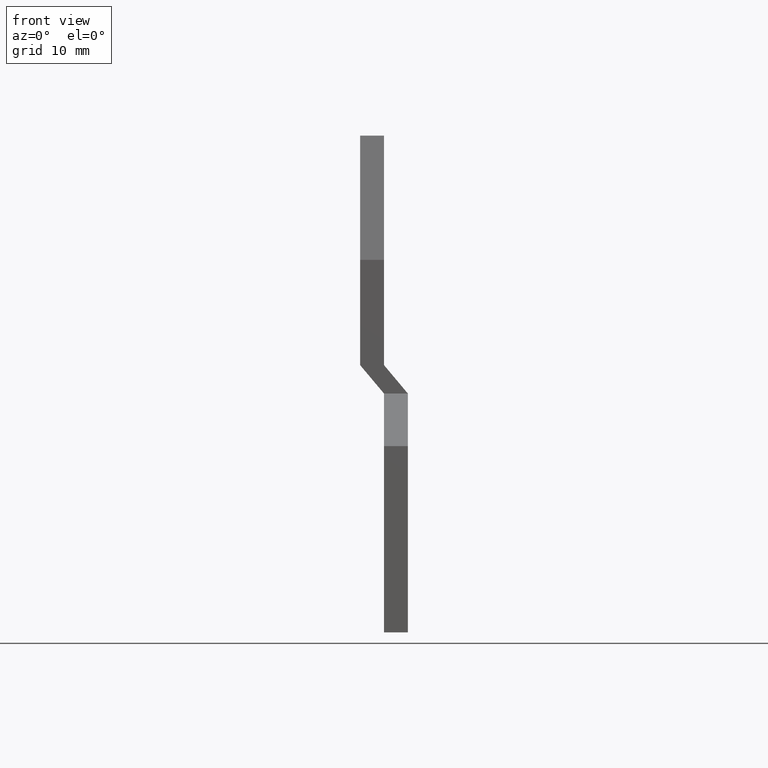
[diagram: clean part render]
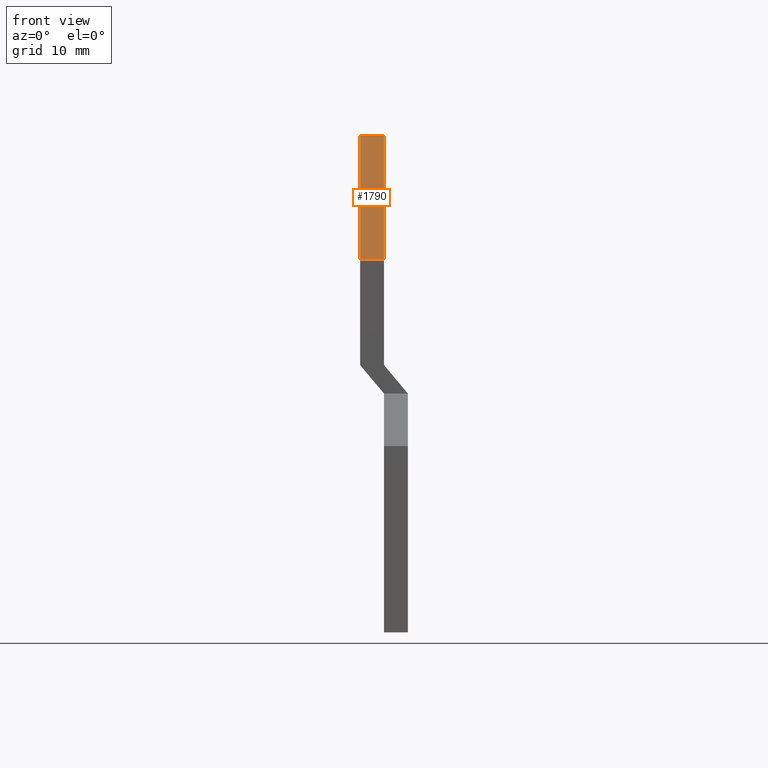
[diagram: same view with one face highlighted and labeled with its STEP entity id]
A machine part, front view. The second image highlights one B-rep face of the part: STEP entity #1790.
In plain terms, the highlighted planar face has unit normal (0, -0.9397, 0.342).
Its self-contained STEP definition (entity closure, byte-faithful):
#100=CARTESIAN_POINT('',(33.9310803014635,58.6364093308882,
4.88498130835069E-15));
#110=VERTEX_POINT('',#100);
#160=CARTESIAN_POINT('',(55.2709350296005,0.00564033088821247,
4.88498130835069E-15));
#170=DIRECTION('',(-0.342020143325662,0.939692620785911,0.));
#180=VECTOR('',#170,1.);
#190=LINE('',#160,#180);
#200=CARTESIAN_POINT('',(38.6626933469241,45.6364093308882,
4.88498130835069E-15));
#210=VERTEX_POINT('',#200);
#220=EDGE_CURVE('',#210,#110,#190,.T.);
#1490=CARTESIAN_POINT('',(34.1705653840396,57.9784294742139,-5.5000024))
;
#1500=DIRECTION('',(0.939692620785911,0.342020143325662,0.));
#1510=DIRECTION('',(0.342020143325662,-0.939692620785911,0.));
#1520=AXIS2_PLACEMENT_3D('',#1490,#1500,#1510);
#1530=PLANE('',#1520);
#1540=CARTESIAN_POINT('',(33.9310803014635,58.6364093308882,
3.99680288865056E-15));
#1550=DIRECTION('',(0.,0.,1.));
#1560=VECTOR('',#1550,1.);
#1570=LINE('',#1540,#1560);
#1580=CARTESIAN_POINT('',(33.9310803014635,58.6364093308882,-2.5));
#1590=VERTEX_POINT('',#1580);
#1600=EDGE_CURVE('',#1590,#110,#1570,.T.);
#1610=ORIENTED_EDGE('',*,*,#1600,.T.);
#1620=CARTESIAN_POINT('',(55.2709350296005,0.00564033088821247,-2.5));
#1630=DIRECTION('',(-0.342020143325662,0.939692620785911,0.));
#1640=VECTOR('',#1630,1.);
#1650=LINE('',#1620,#1640);
#1660=CARTESIAN_POINT('',(38.662693346924,45.6364093308882,-2.5));
#1670=VERTEX_POINT('',#1660);
#1680=EDGE_CURVE('',#1670,#1590,#1650,.T.);
#1690=ORIENTED_EDGE('',*,*,#1680,.T.);
#1700=CARTESIAN_POINT('',(38.6626933469241,45.6364093308882,-5.5000024))
;
#1710=DIRECTION('',(0.,0.,1.));
#1720=VECTOR('',#1710,1.);
#1730=LINE('',#1700,#1720);
#1740=EDGE_CURVE('',#1670,#210,#1730,.T.);
#1750=ORIENTED_EDGE('',*,*,#1740,.F.);
#1760=ORIENTED_EDGE('',*,*,#220,.F.);
#1770=EDGE_LOOP('',(#1760,#1750,#1690,#1610));
#1780=FACE_OUTER_BOUND('',#1770,.T.);
#1790=ADVANCED_FACE('',(#1780),#1530,.T.);